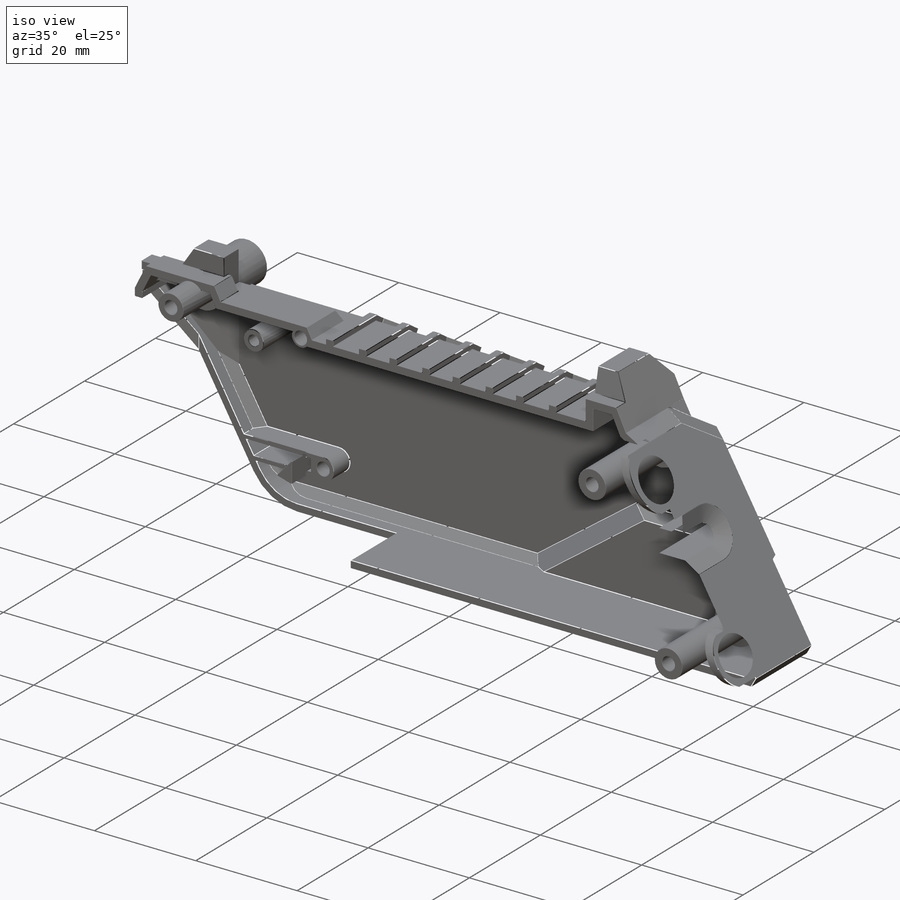
[diagram: iso view]
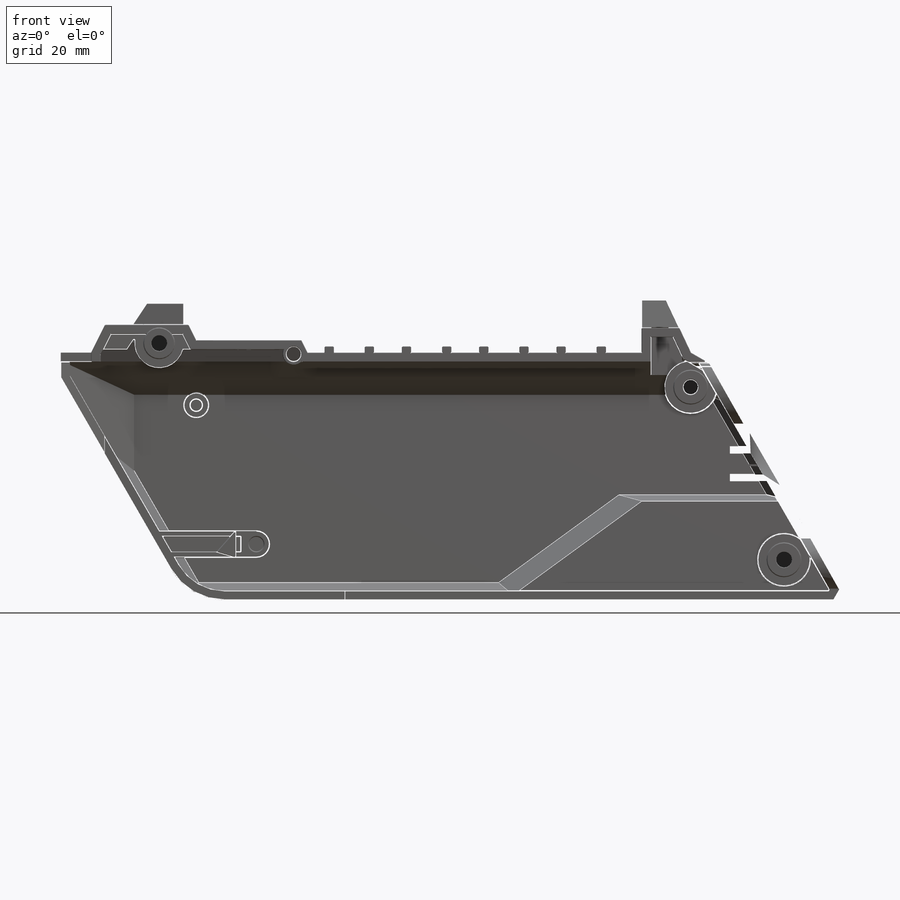
[diagram: front view]
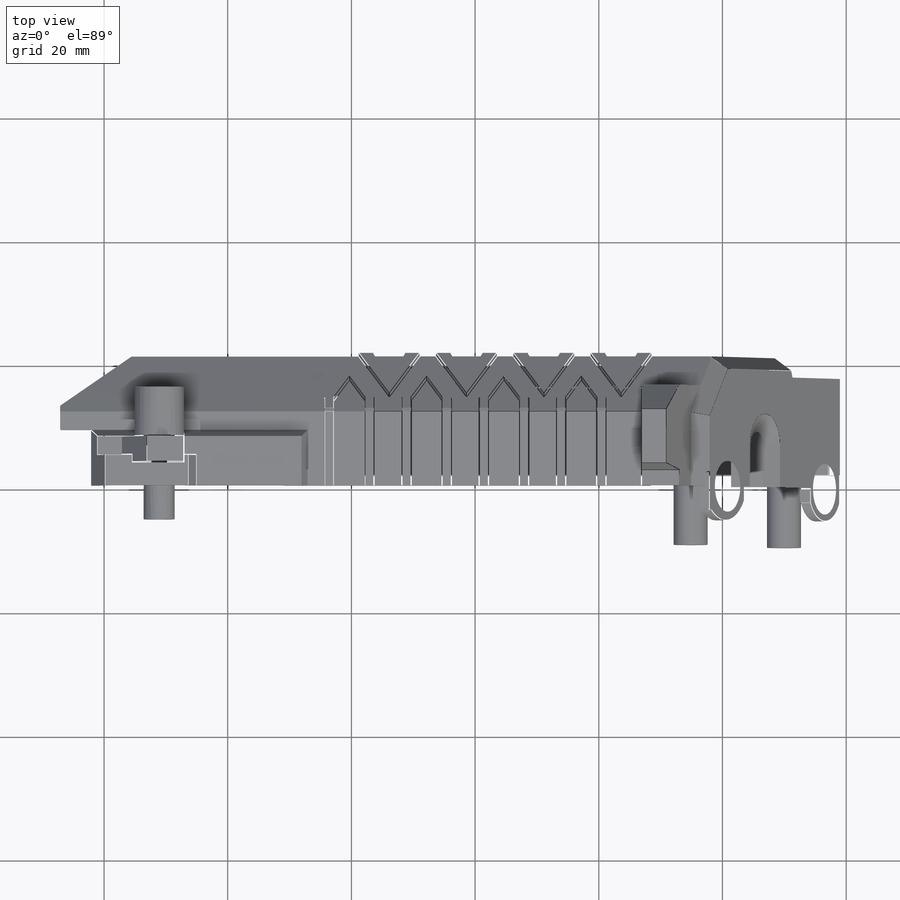
[diagram: top view]
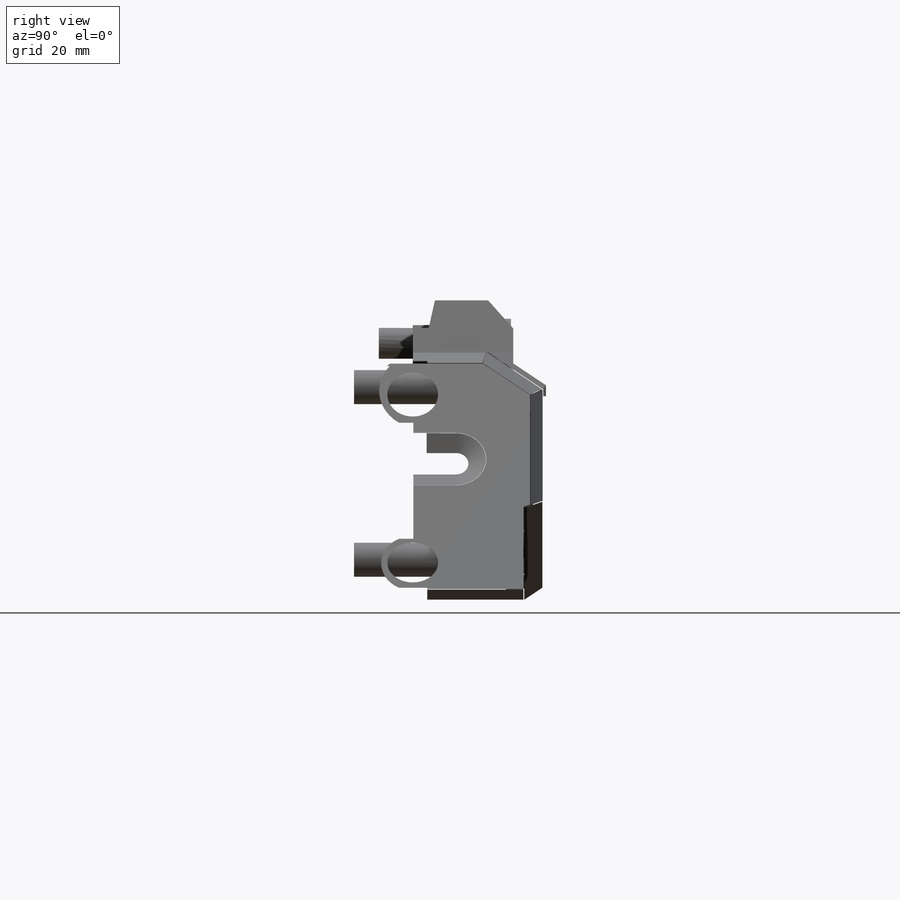
[diagram: right view]
SOLIDWORKS PART (.sldprt)
format: sldprt  version: not decoded by parser v0  size: 8,555,520 bytes
history: native  units: mm
features: sketch x75, extrude x46, fillet x35, cut_extrude x20, plane x10, chamfer x9, sweep x3, material x1, shell x1, pattern_linear x1, mirror x1, delete_body x1 (+11 scaffold rows collapsed)
feature tree (214):
  scaffold x11  (default folders/planes/origin — collapsed)
  material  "Material <not specified>"
  sketch  "Sketch2"  dims[c1.D1=~139.213877mm c2.D1=60.0deg c2.D2=3.0mm c2.D3=36.0mm c2.D4=101.0mm c2.D5=87.0mm c2.D6=4.0mm c3.D1=37.0mm c3.D2=104.0mm c3.D3=4.0mm c3.D4=42.0mm c3.D5=37.0mm c4.D5=60.0deg c4.D4=~91.233508mm c5.D4=120.0deg c5.D1=40.0mm]
  extrude  "Boss-Extrude1"  Depth=21mm
  sketch  "Sketch3"  dims[c1.D1=~7.662051mm c1.D2=~7.581231mm c2.D1=9.0mm c2.D2=5.0mm c2.D3=4.0mm c2.D4=14.0mm]
  sketch  "Sketch4"  dims[D1=6.0mm D2=9.0mm]
  cut_extrude  "Cut-Extrude2"  Depth=21mm
  cut_extrude  "Cut-Extrude3"  Depth=144mm
  chamfer  "Chamfer4"  Distance=2mm
  sketch  "Sketch5"  dims[D1=57.0mm D2=27.0mm D3=28.0mm]
  cut_extrude  "Cut-Extrude4"  Depth=3mm
  chamfer  "Chamfer5"  Distance=3mm
  chamfer  "Chamfer6"  Distance=3mm
  chamfer  "Chamfer8"  Distance=3mm
  sketch  "Sketch6"  dims[c1.D1=9.0mm c1.D2=~23.77507mm c2.D1=35.0mm]
  extrude  "Boss-Extrude2"  Depth=2mm
  sketch  "Sketch7"  dims[c1.D1=~4.418325mm c1.D2=~16.533808mm c2.D1=18.0mm c2.D2=5.0mm]
  extrude  "Boss-Extrude3"  Depth=2.5mm
  sketch  "Sketch8"  dims[c1.D1=~3.080292mm c1.D2=~10.686786mm c2.D1=10.0mm c2.D2=4.25mm c2.D3=5.0mm c2.D4=3.0mm]
  extrude  "Boss-Extrude4"  Depth=6mm
  sketch  "Sketch9"  dims[c1.D1=17.0678mm c1.D2=~8.160673mm c2.D1=8.0mm c2.D2=16.25mm c2.D3=~14.591889mm c3.D2=~9.535765mm]
  extrude  "Boss-Extrude5"  Depth=4mm
  sketch  "Sketch10"  dims[D1=2.5mm]
  extrude  "Boss-Extrude6"  Depth=4.5mm
  chamfer  "Chamfer9"  Distance=4.5mm
  chamfer  "Chamfer10"  Distance=4.5mm
  chamfer  "Chamfer11"  Distance=2mm
  chamfer  "Chamfer12"  Distance=4.5mm
  chamfer  "Chamfer13"  Distance=6mm
  sketch  "Sketch11"  dims[D1=4.0mm]
  cut_extrude  "Cut-Extrude5"  Depth=23.5mm
  sketch  "Sketch12"  dims[D1=~1.773348mm]
  cut_extrude  "Cut-Extrude6"  [1 undecoded]
  fillet  "Fillet1"  Radius=10mm
  sketch  "Sketch32"  dims[D1=5.5mm D4=5.5mm D2=5.25mm D3=6.5mm]
  cut_extrude  "Cut-Extrude11"  Depth=10mm
  shell  "Shell2"  Thickness=1.5mm
  sketch  "Sketch13"  dims[D1=2.25mm D2=79.0mm D3=3.0mm D4=0.0mm D5=9.0mm]
  cut_extrude  "Cut-Extrude7"  [1 undecoded]
  sketch  "Sketch14"  dims[D1=0.0mm]
  extrude  "Boss-Extrude7"  [1 undecoded]
  sketch  "Sketch15"  dims[c1.D1=12.0mm c1.D2=~1.874648mm c2.D1=12.0mm c2.D2=~2.466642mm c3.D1=12.0mm c3.D2=~2.022646mm c4.D1=12.0mm c4.D2=~2.367976mm c5.D1=12.0mm c5.D2=~2.713306mm c6.D1=12.0mm c6.D2=~2.762639mm c7.D1=12.0mm c7.D2=~2.95997mm c8.D1=12.0mm c8.D2=~2.663973mm c9.D1=1.5mm c9.D2=1.5mm c9.D3=1.5mm c9.D4=1.5mm c9.D5=1.5mm c9.D6=1.5mm c9.D7=1.5mm c9.D8=1.5mm c9.D9=2.75mm c9.D10=8.0mm c9.D11=8.0mm c9.D12=8.0mm c9.D13=8.0mm c9.D14=4.5mm c9.D15=4.5mm c9.D16=4.5mm]
  extrude  "Boss-Extrude8"  Depth=1mm
  sketch  "Sketch16"  dims[c1.D1=2.5mm c1.D2=2.5mm c1.D3=4.0mm c1.D4=9.0mm c1.D5=1.5mm c1.D6=1.5mm c1.D7=8.0mm c1.D8=8.0mm c1.D9=2.0mm c1.D10=2.0mm c1.D11=1.5mm c1.D12=~0.415449mm c2.D7=2.0mm c2.D8=2.0mm c2.D9=8.0mm c2.D10=~2.248796mm]
  extrude  "Boss-Extrude9"  Depth=1mm
  sketch  "Sketch17"  dims[D1=~0.579568mm]
  extrude  "Boss-Extrude10"  [1 undecoded]
  sketch  "Sketch18"  dims[D1=1.0mm]
  extrude  "Boss-Extrude11"  [1 undecoded]
  plane  "Plane1"
  plane  "Plane2"
  sketch  "Sketch19"  dims[D1=2.0mm]
  extrude  "Boss-Extrude12"  [1 undecoded]
  sketch  "Sketch20"  dims[D1=2.0mm]
  extrude  "Boss-Extrude13"  [1 undecoded]
  pattern_linear  "LPattern2"  Count1=4 Count2=1 Spacing1=12.5mm Spacing2=10mm
  plane  "Plane3"
  plane  "Plane4"
  plane  "Plane5"
  plane  "Plane6"
  plane  "Plane7"
  plane  "Plane8"
  sketch  "Sketch21"  dims[D1=2.0mm]
  sketch  "Sketch22"  dims[D1=2.0mm]
  sketch  "Sketch23"  dims[D1=2.0mm]
  sketch  "Sketch24"  dims[D1=2.0mm]
  sketch  "Sketch25"  dims[D1=2.0mm]
  sketch  "Sketch26"  dims[D1=2.0mm]
  extrude  "Boss-Extrude14"  [1 undecoded]
  extrude  "Boss-Extrude15"  [1 undecoded]
  extrude  "Boss-Extrude16"  [1 undecoded]
  extrude  "Boss-Extrude17"  [1 undecoded]
  extrude  "Boss-Extrude18"  [1 undecoded]
  extrude  "Boss-Extrude19"  [1 undecoded]
  sketch  "Sketch27"  dims[c1.D1=~11.504561mm c1.D5=7.25mm c1.D7=~2.402932mm c1.D10=~5.001242mm c2.D1=3.75mm c2.D2=1.0mm c2.D3=0.5mm c2.D4=12.25mm c2.D6=~0.73855mm c3.D6=45.0deg c3.D7=4.5mm c3.D8=4.0mm c3.D9=9.0mm c3.D10=10.0mm c3.D11=2.0mm c3.D12=0.0mm c3.D13=0.0mm c3.D14=0.0mm c3.D15=0.0mm]
  cut_extrude  "Cut-Extrude8"  Depth=5mm
  sketch  "Sketch29"
  sketch  "Sketch30"  dims[D1=0.0mm D2=2.0mm]
  sketch  "Sketch31"
  sketch  "Sketch34"  dims[D1=1.75mm]
  sweep  "Cut-Sweep1"
  sketch  "Sketch35"  dims[D1=0.0mm]
  sketch  "Sketch36"
  sketch  "Sketch37"
  sweep  "Cut-Sweep2"
  sketch  "Sketch38"  dims[D1=5.5mm]
  cut_extrude  "Cut-Extrude12"  Depth=2mm
  sketch  "Sketch39"  dims[D1=5.5mm]
  extrude  "Boss-Extrude22"  Depth=1mm
  sketch  "Sketch40"  dims[D1=2.5mm]
  cut_extrude  "Cut-Extrude13"  Depth=1mm
  sketch  "Sketch41"  dims[D1=5.5mm]
  cut_extrude  "Cut-Extrude14"  Depth=2mm
  sketch  "Sketch42"  dims[D1=5.5mm]
  extrude  "Boss-Extrude23"  Depth=1mm
  sketch  "Sketch43"  dims[D1=2.5mm]
  cut_extrude  "Cut-Extrude15"  Depth=1mm
  sketch  "Sketch45"  dims[D1=2.5mm D2=5.0mm D3=2.25mm]
  extrude  "Boss-Extrude24"  Depth=4.5mm
  fillet  "Fillet2"  Radius=1.25mm
  plane  "Plane9"  Offset=5mm
  sketch  "Sketch46"  dims[D1=8.0mm D2=5.0mm D3=0.5mm]
  extrude  "Boss-Extrude25"  [1 undecoded]
  sketch  "Sketch47"  dims[D1=5.0mm]
  cut_extrude  "Cut-Extrude16"  Depth=21.5mm
  sketch  "Sketch48"  dims[c1.D1=~4.799598mm c1.D2=8.0mm c2.D1=5.0mm]
  extrude  "Boss-Extrude34"  [1 undecoded]
  sketch  "Sketch50"  dims[D1=0.0mm]
  extrude  "Boss-Extrude35"  [1 undecoded]
  sketch  "Sketch51"  dims[D1=5.0mm]
  extrude  "Boss-Extrude36"  Depth=1mm
  sketch  "Sketch52"  dims[D1=2.5mm]
  cut_extrude  "Cut-Extrude17"  Depth=1mm
  sketch  "Sketch53"  dims[c1.D1=1.0mm c1.D2=3.25mm c1.D3=1.0mm c1.D4=3.25mm c2.D2=0.0mm]
  extrude  "Boss-Extrude37"  [1 undecoded]
  sketch  "Sketch54"  dims[D1=0.5mm D2=0.0mm D3=1.25mm]
  extrude  "Boss-Extrude38"  Depth=4mm
  sketch  "Sketch55"  dims[D1=4.0mm D2=2.0mm D3=10.5mm D4=32.0mm]
  extrude  "Boss-Extrude39"  [1 undecoded]
  sketch  "Sketch57"  dims[c1.D3=2.125mm c1.D1=4.25mm c1.D2=0.0mm c2.D3=19.5mm]
  extrude  "Boss-Extrude40"  [1 undecoded]
  sketch  "Sketch58"  dims[D1=2.5mm D2=2.5mm D3=0.0mm D4=2.5mm D5=1.5mm]
  cut_extrude  "Cut-Extrude18"  [1 undecoded]
  sketch  "Sketch59"  dims[D1=3.0mm D2=5.5mm]
  extrude  "Boss-Extrude41"  Depth=4mm
  mirror  "Mirror1"
  plane  "Plane10"  Offset=0mm
  sketch  "Sketch60"  dims[D1=~75.627654mm D2=~168.225139mm]
  cut_extrude  "Cut-Extrude19"  Depth=42mm
  sketch  "Sketch61"  dims[D1=5.0mm D2=2.5mm]
  extrude  "Boss-Extrude42"  Depth=11mm
  sketch  "Sketch62"  dims[D1=2.5mm D2=5.5mm]
  extrude  "Boss-Extrude43"  Depth=21mm
  sketch  "Sketch63"  dims[D1=2.5mm D2=5.5mm]
  extrude  "Boss-Extrude44"  Depth=21mm
  sketch  "Sketch64"  dims[D1=2.5mm]
  cut_extrude  "Cut-Extrude20"  [1 undecoded]
  sketch  "Sketch65"  dims[D1=3.5mm D2=2.5mm]
  extrude  "Boss-Extrude46"  [1 undecoded]
  sketch  "Sketch66"  dims[c1.D1=4.0mm c1.D2=2.0mm c1.D3=13.0mm c1.D4=~18.842119mm c2.D3=13.0mm c2.D4=22.0mm]
  extrude  "Boss-Extrude47"  Depth=7mm
  sketch  "Sketch67"  dims[D1=5.0mm]
  extrude  "Boss-Extrude48"  Depth=2mm
  sketch  "Sketch68"  dims[D1=5.5mm]
  extrude  "Boss-Extrude49"  Depth=2mm
  sketch  "Sketch69"  dims[c1.D2=0.5mm c1.D3=8.0mm c1.D1=5.0mm c2.D3=0.0mm c2.D4=0.0mm c3.D3=~2.585003mm c4.D3=30.0deg]
  cut_extrude  "Cut-Extrude21"  Depth=0.25mm
  fillet  "Fillet3"  Radius=0.25mm
  sketch  "Sketch70"  dims[D1=8.5mm]
  extrude  "Boss-Extrude52"  Depth=1.75mm
  sketch  "Sketch71"  dims[c1.D1=5.0mm c1.D2=0.0mm c1.D3=2.0mm c1.D4=~298.024813mm c2.D3=5.5mm]
  sketch  "Sketch72"  dims[c1.D6=5.0mm c1.D1=13.0mm c1.D2=28.0mm c1.D3=12.0mm c1.D4=10.0mm c2.D4=90.0deg c3.D4=13.0mm c4.D4=120.0deg c4.D5=~6.840403mm c5.D5=70.0deg c5.D3=0.0mm c6.D5=~4.840125mm c7.D5=70.0deg c7.D7=19.0mm]
  sketch  "Sketch73"  dims[D1=5.5mm]
  extrude  "Boss-Extrude53"  [1 undecoded]
  sketch  "Sketch74"  dims[c1.D1=~7.159266mm c1.D2=~7.049725mm c2.D1=0.0mm]
  cut_extrude  "Cut-Extrude22"  Depth=10mm
  sketch  "Sketch76"
  extrude  "Boss-Extrude54"  Depth=0.25mm
  sketch  "Sketch78"  dims[c1.D1=~43.159625mm c1.D8=~56.268444mm c2.D1=~10.579837mm c2.D2=~6.23342mm c2.D3=~7.160629mm c2.D4=~66.765438mm c2.D5=0.0mm c2.D6=~39.421542mm c2.D7=~20.12342mm c2.D8=~23.430672mm]
  extrude  "Boss-Extrude55"  Depth=0.25mm
  fillet  "Fillet5"  Radius=0.1mm
  fillet  "Fillet6"  Radius=0.1mm
  fillet  "Fillet7"  Radius=0.1mm
  fillet  "Fillet8"  Radius=0.1mm
  fillet  "Fillet9"  Radius=0.1mm
  fillet  "Fillet11"  Radius=0.1mm
  fillet  "Fillet13"  Radius=0.1mm
  fillet  "Fillet20"  Radius=0.1mm
  fillet  "Fillet23"  Radius=0.1mm
  fillet  "Fillet25"  Radius=0.1mm
  fillet  "Fillet32"  Radius=0.1mm
  fillet  "Fillet33"  Radius=0.1mm
  fillet  "Fillet36"  Radius=0.1mm
  fillet  "Fillet38"  Radius=0.05mm
  fillet  "Fillet40"  Radius=0.1mm
  fillet  "Fillet41"  Radius=0.1mm
  fillet  "Fillet42"  Radius=0.1mm
  fillet  "Fillet43"  Radius=0.1mm
  fillet  "Fillet44"  Radius=0.1mm
  fillet  "Fillet45"  Radius=0.1mm
  fillet  "Fillet46"  Radius=0.1mm
  fillet  "Fillet47"  Radius=0.1mm
  fillet  "Fillet48"  Radius=0.1mm
  fillet  "Fillet51"  Radius=0.1mm
  delete_body  "Body-Delete1"
  sketch  "Sketch79"  dims[c1.D1=~5.155292mm c1.D2=~1.748432mm c2.D1=0.0mm c2.D2=0.0mm c2.D3=1.0mm c2.D4=0.0mm]
  cut_extrude  "Cut-Extrude23"  Depth=6.25mm
  sketch  "Sketch80"
  extrude  "Boss-Extrude56"  [1 undecoded]
  sweep  "Sweep1"
  sketch  "Sketch82"  dims[D1=2.0mm D2=2.0mm]
  extrude  "Boss-Extrude57"  Depth=0.1mm
  sketch  "Sketch83"  dims[D1=2.0mm D2=2.0mm]
  extrude  "Boss-Extrude58"  Depth=0.1mm
  sketch  "Sketch85"  dims[D1=0.0mm]
  extrude  "Boss-Extrude59"  [1 undecoded]
  fillet  "Fillet53"  Radius=0.1mm
  fillet  "Fillet54"  Radius=0.1mm
  fillet  "Fillet55"  Radius=0.1mm
  fillet  "Fillet56"  Radius=0.1mm
  fillet  "Fillet57"  Radius=0.1mm
  fillet  "Fillet58"  Radius=0.1mm
  fillet  "Fillet59"  Radius=0.1mm
  fillet  "Fillet60"  Radius=0.1mm
decode coverage: 156 of 192 modeling features carry decoded parameters
note: ~ marks probable driven/reference dimensions
note: 25 parameter values undecoded
summary: no parameter record found for 25 features
note: suppression state not decoded; provenance and decode notes live in map.json
